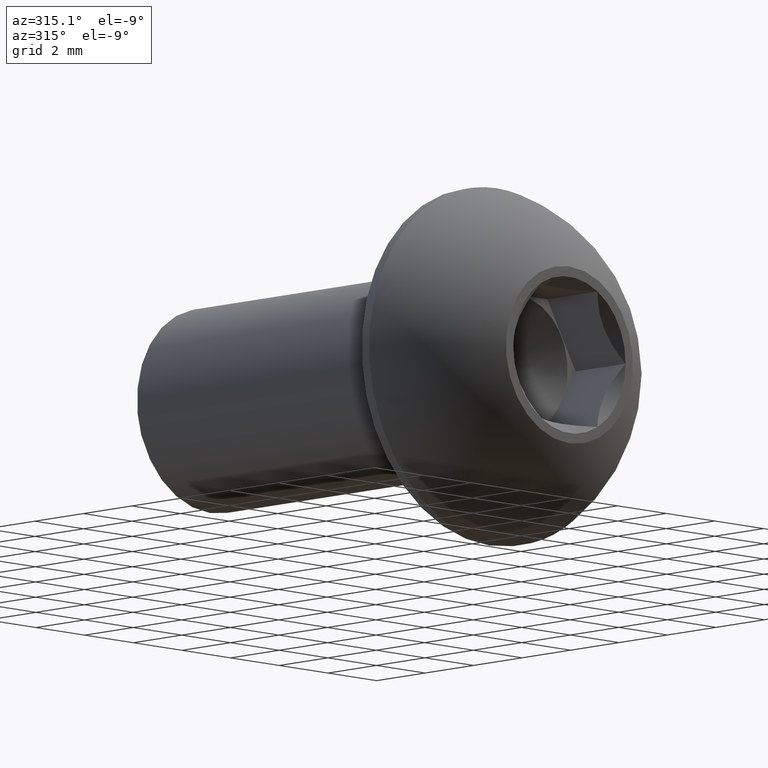
[diagram: clean part render]
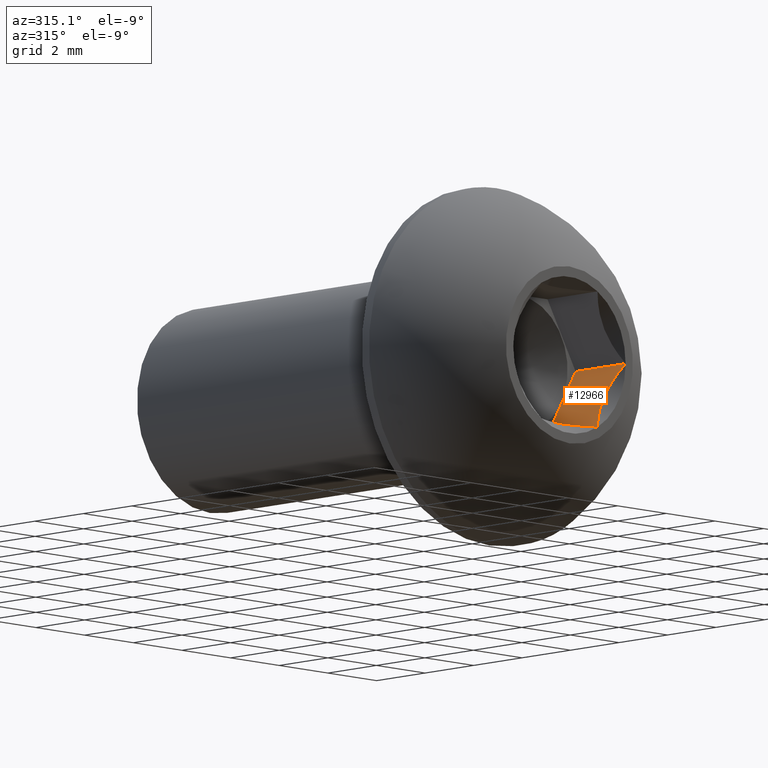
[diagram: same view with one face highlighted and labeled with its STEP entity id]
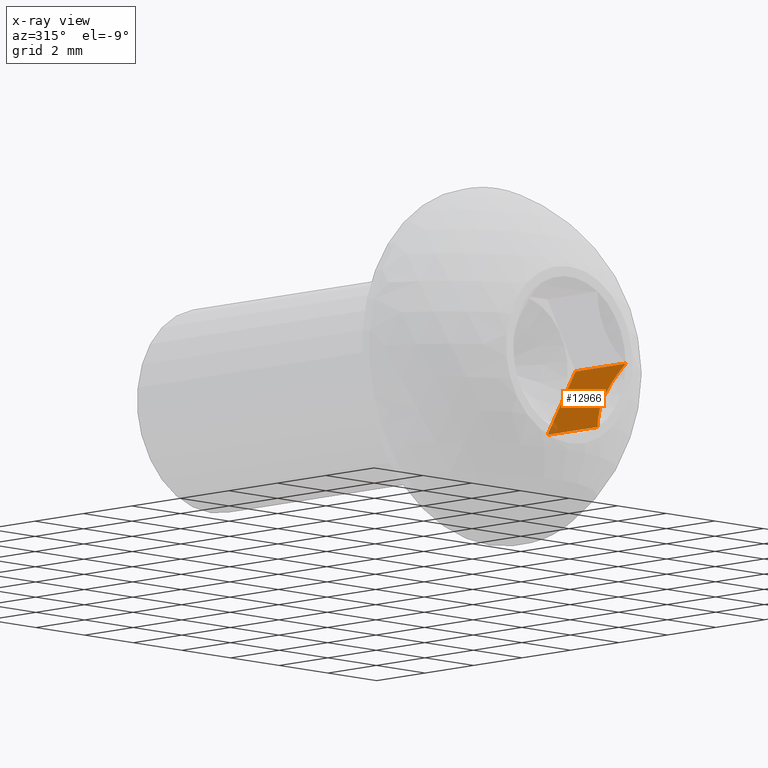
[diagram: x-ray of the same camera — body ghosted, the highlighted face saturated]
A machine part, auxiliary view. The second image highlights one B-rep face of the part: STEP entity #12966.
The next image is the same camera in x-ray: the body ghosted, the highlighted face saturated — about 3% of this face is hidden behind the body in this view.
In plain terms, the highlighted planar face has unit normal (0.866, 0, -0.5).
Its self-contained STEP definition (entity closure, byte-faithful):
#75 = CARTESIAN_POINT ( 'NONE',  ( 1.934985545853182200, 0.2709947582014008400, -0.6485067226708510800 ) ) ;
#105 = CARTESIAN_POINT ( 'NONE',  ( 2.309401076758477200, 2.062499999999999600, -4.329725882211680000E-016 ) ) ;
#131 = CARTESIAN_POINT ( 'NONE',  ( 2.219182151635831400, 0.09021892512267321000, -0.1562637621166766400 ) ) ;
#132 = VECTOR ( 'NONE', #12487, 1000.000000000000000 ) ;
#140 = VECTOR ( 'NONE', #8305, 1000.000000000000000 ) ;
#180 = CARTESIAN_POINT ( 'NONE',  ( 1.154700538379223500, 0.0000000000000000000, -2.000000000000016000 ) ) ;
#532 = CARTESIAN_POINT ( 'NONE',  ( 1.154700538379232100, 2.062499999999999600, -2.000000000000000900 ) ) ;
#1011 = VERTEX_POINT ( 'NONE', #180 ) ;
#1018 = FACE_OUTER_BOUND ( 'NONE', #4542, .T. ) ;
#1274 = CARTESIAN_POINT ( 'NONE',  ( 1.784578465267425000, 0.3091822087746347600, -0.9090194280634901200 ) ) ;
#1309 = CARTESIAN_POINT ( 'NONE',  ( 2.309401076758477200, 0.0000000000000000000, -4.329725882211680000E-016 ) ) ;
#1860 = CARTESIAN_POINT ( 'NONE',  ( 1.154700538379232100, 2.062499999999999600, -2.000000000000000900 ) ) ;
#2456 = CARTESIAN_POINT ( 'NONE',  ( 1.633374704908074700, 0.3098252479567656400, -1.170912023301353700 ) ) ;
#3640 = CARTESIAN_POINT ( 'NONE',  ( 1.338892124838637200, 0.1685650473658849000, -1.680970813925594300 ) ) ;
#4297 = VERTEX_POINT ( 'NONE', #532 ) ;
#4542 = EDGE_LOOP ( 'NONE', ( #8055, #14447, #6623, #6870 ) ) ;
#5183 = DIRECTION ( 'NONE',  ( -0.4999999999999977200, 0.0000000000000000000, -0.8660254037844398200 ) ) ;
#6403 = CARTESIAN_POINT ( 'NONE',  ( 1.154700538379232100, 2.062499999999999600, -2.000000000000000900 ) ) ;
#6496 = VERTEX_POINT ( 'NONE', #1309 ) ;
#6623 = ORIENTED_EDGE ( 'NONE', *, *, #14211, .T. ) ;
#6713 = B_SPLINE_CURVE_WITH_KNOTS ( 'NONE', 3,
 ( #12063, #131, #14445, #13035, #75, #8330, #1274, #2456, #10713, #3640, #13087, #8698 ),
 .UNSPECIFIED., .F., .F.,
 ( 4, 2, 2, 2, 2, 4 ),
 ( 2.544349856170600700E-007, 0.0005966331004600517900, 0.0008948224331972693800, 0.001193011765934487200, 0.001789390431408922300, 0.002385769096883357500 ),
 .UNSPECIFIED. ) ;
#6870 = ORIENTED_EDGE ( 'NONE', *, *, #9671, .F. ) ;
#8055 = ORIENTED_EDGE ( 'NONE', *, *, #8878, .F. ) ;
#8305 = DIRECTION ( 'NONE',  ( 0.0000000000000000000, -1.000000000000000000, 0.0000000000000000000 ) ) ;
#8330 = CARTESIAN_POINT ( 'NONE',  ( 1.835708118644007200, 0.3010809727709111700, -0.8204602706418642200 ) ) ;
#8698 = CARTESIAN_POINT ( 'NONE',  ( 1.154700538379223500, 0.0000000000000000000, -2.000000000000016000 ) ) ;
#8878 = EDGE_CURVE ( 'NONE', #9722, #6496, #9022, .T. ) ;
#9022 = LINE ( 'NONE', #105, #140 ) ;
#9671 = EDGE_CURVE ( 'NONE', #6496, #1011, #6713, .T. ) ;
#9722 = VERTEX_POINT ( 'NONE', #12210 ) ;
#10713 = CARTESIAN_POINT ( 'NONE',  ( 1.534293179749486300, 0.2792985613756313000, -1.342526258967445400 ) ) ;
#11103 = DIRECTION ( 'NONE',  ( 0.8660254037844399300, 0.0000000000000000000, -0.4999999999999977800 ) ) ;
#11387 = VECTOR ( 'NONE', #14101, 1000.000000000000100 ) ;
#12063 = CARTESIAN_POINT ( 'NONE',  ( 2.309401076758477200, 0.0000000000000000000, -4.329725882211680000E-016 ) ) ;
#12210 = CARTESIAN_POINT ( 'NONE',  ( 2.309401076758477200, 2.062499999999999600, -4.329725882211680000E-016 ) ) ;
#12268 = EDGE_CURVE ( 'NONE', #4297, #9722, #12851, .T. ) ;
#12487 = DIRECTION ( 'NONE',  ( 0.0000000000000000000, -1.000000000000000000, 0.0000000000000000000 ) ) ;
#12708 = CARTESIAN_POINT ( 'NONE',  ( 1.154700538379232100, 2.062499999999999600, -2.000000000000000900 ) ) ;
#12851 = LINE ( 'NONE', #12708, #11387 ) ;
#12966 = ADVANCED_FACE ( 'NONE', ( #1018 ), #13507, .F. ) ;
#13035 = CARTESIAN_POINT ( 'NONE',  ( 1.983596481850121700, 0.2491289938367703100, -0.5643101117206726900 ) ) ;
#13087 = CARTESIAN_POINT ( 'NONE',  ( 1.245451299245582200, 0.09075076086680117200, -1.842815071353949100 ) ) ;
#13432 = LINE ( 'NONE', #1860, #132 ) ;
#13507 = PLANE ( 'NONE',  #15317 ) ;
#14101 = DIRECTION ( 'NONE',  ( 0.4999999999999977800, 0.0000000000000000000, 0.8660254037844398200 ) ) ;
#14211 = EDGE_CURVE ( 'NONE', #4297, #1011, #13432, .T. ) ;
#14445 = CARTESIAN_POINT ( 'NONE',  ( 2.126928016055928500, 0.1669275899206298700, -0.3160526121494167100 ) ) ;
#14447 = ORIENTED_EDGE ( 'NONE', *, *, #12268, .F. ) ;
#15317 = AXIS2_PLACEMENT_3D ( 'NONE', #6403, #11103, #5183 ) ;